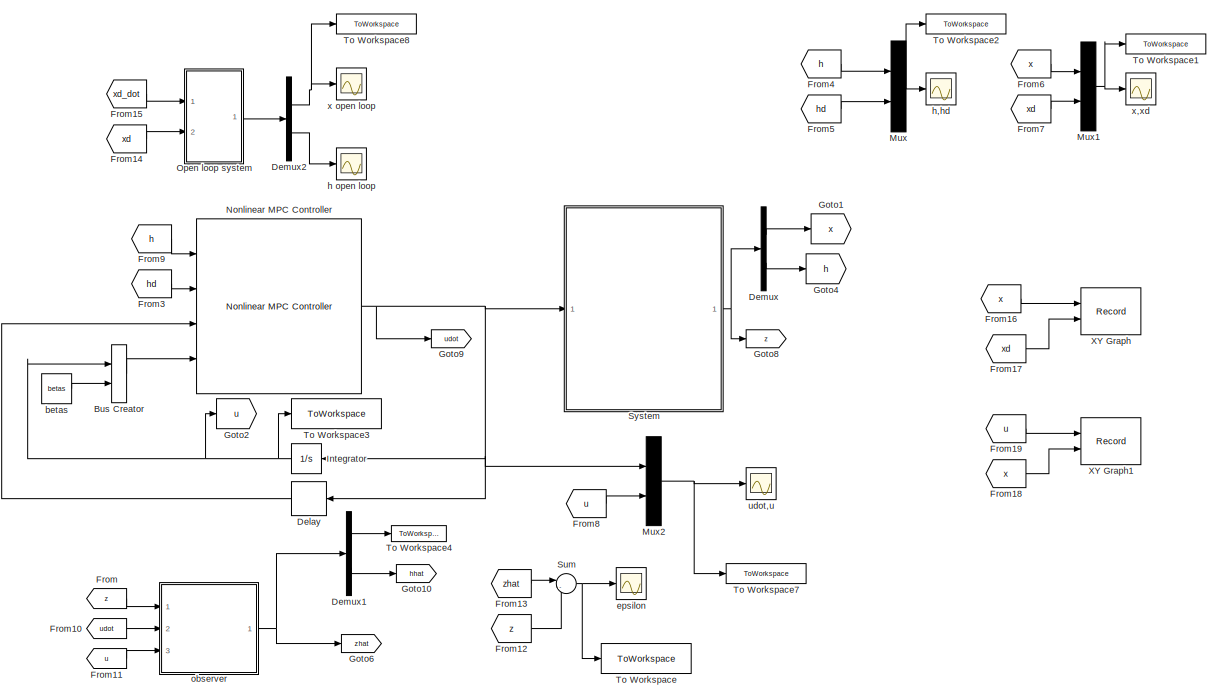
[diagram: root canvas - part 1/2, right side, full height]
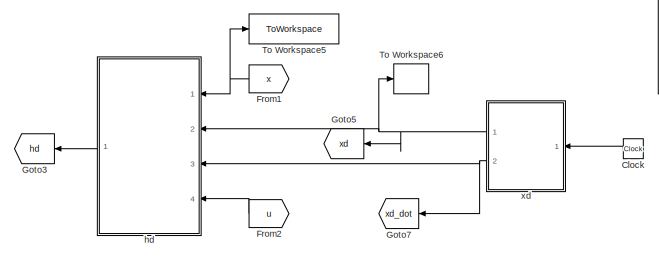
[diagram: root canvas - part 2/2, bottom left region]
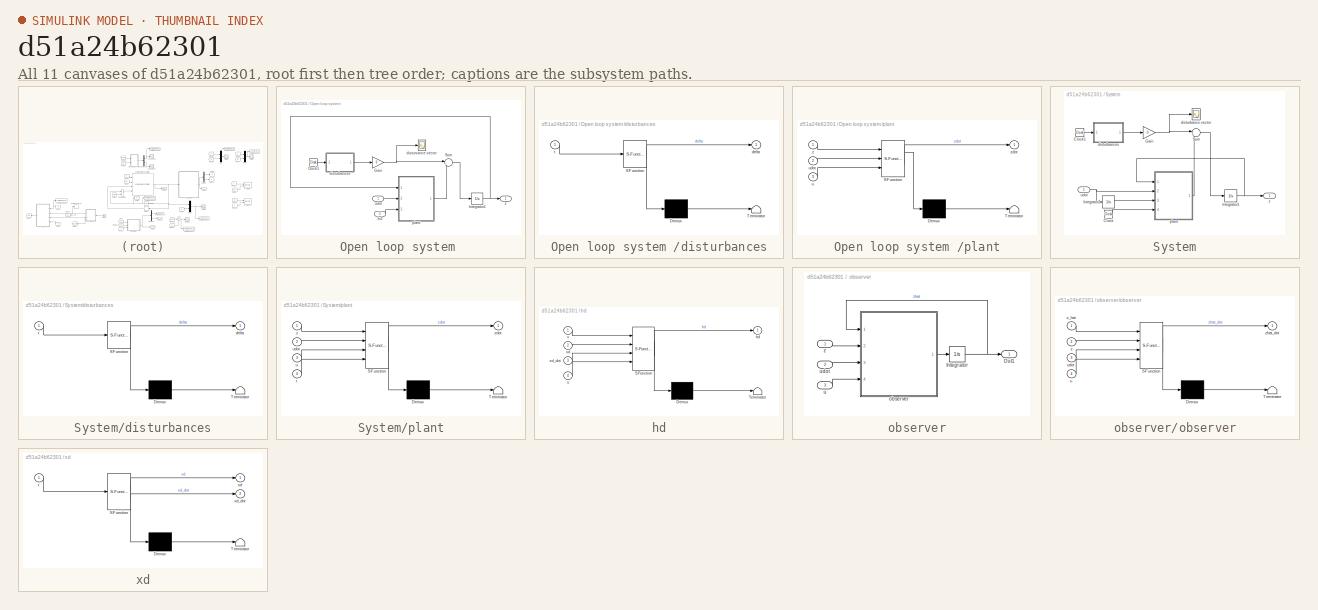
[diagram: thumbnail index - all 11 canvases of the model, root first then tree order]
MODEL slx_d51a24b62301
KIND model
CONFIG AbsTol = auto
CONFIG EnableMultiTasking = off
CONFIG FixedStep = 0.0001
CONFIG MaxStep = auto
CONFIG MinStep = auto
CONFIG RelTol = 1e-3
CONFIG SampleTimeConstraint = Unconstrained
CONFIG SolverName = ode5
CONFIG StartTime = 0.0
CONFIG StopTime = 40
BLOCK [BusCreator] Bus Creator
  DisplayOption = bar
  InheritFromInputs = off
  Inputs = 2
  NonVirtualBus = on
  OutDataTypeStr = Bus: myBusObject
  Ports = [2, 1]
BLOCK [Clock] Clock
BLOCK [Delay] Delay
  DelayLength = 1
  InitialCondition = 0
  InputPortMap = u0
  Ports = [1, 1]
BLOCK [Demux] Demux
  Outputs = 2
  Ports = [1, 2]
BLOCK [Demux] Demux1
  Outputs = 2
  Ports = [1, 2]
BLOCK [Demux] Demux2
  Outputs = 2
  Ports = [1, 2]
BLOCK [From] From
  GotoTag = z
BLOCK [From] From1
  GotoTag = x
BLOCK [From] From10
  GotoTag = udot
BLOCK [From] From11
  GotoTag = u
BLOCK [From] From12
  GotoTag = z
BLOCK [From] From13
  GotoTag = zhat
BLOCK [From] From14
  GotoTag = xd
BLOCK [From] From15
  GotoTag = xd_dot
BLOCK [From] From16
  GotoTag = x
BLOCK [From] From17
  GotoTag = xd
BLOCK [From] From18
  GotoTag = x
BLOCK [From] From19
  GotoTag = u
BLOCK [From] From2
  GotoTag = u
BLOCK [From] From3
  GotoTag = hd
BLOCK [From] From4
  GotoTag = h
BLOCK [From] From5
  GotoTag = hd
BLOCK [From] From6
  GotoTag = x
BLOCK [From] From7
  GotoTag = xd
BLOCK [From] From8
  GotoTag = u
BLOCK [From] From9
  GotoTag = h
BLOCK [Goto] Goto1
  GotoTag = x
BLOCK [Goto] Goto10
  GotoTag = hhat
BLOCK [Goto] Goto2
  GotoTag = u
BLOCK [Goto] Goto3
  GotoTag = hd
BLOCK [Goto] Goto4
  GotoTag = h
BLOCK [Goto] Goto5
  GotoTag = xd
BLOCK [Goto] Goto6
  GotoTag = zhat
BLOCK [Goto] Goto7
  GotoTag = xd_dot
BLOCK [Goto] Goto8
  GotoTag = z
BLOCK [Goto] Goto9
  GotoTag = udot
BLOCK [Integrator] Integrator
  Ports = [1, 1]
BLOCK [Mux] Mux
  DisplayOption = bar
  Inputs = 2
  Ports = [2, 1]
BLOCK [Mux] Mux1
  DisplayOption = bar
  Inputs = 2
  Ports = [2, 1]
BLOCK [Mux] Mux2
  DisplayOption = bar
  Inputs = 2
  Ports = [2, 1]
BLOCK [Reference] Nonlinear MPC Controller  REF=mpclib/Nonlinear MPC Controller  (lib defined in mdl_ae329e0e0455)
  Ports = [4, 1]
  SCDEnableBlockLinearizationSpecification = on
  SourceBlock = mpclib/Nonlinear MPC Controller
  SourceProductBaseCode = MP
  SourceType = NonlinearMPC
BLOCK [SubSystem] Open loop system 
  Ports = [2, 1]
  RequestExecContextInheritance = off
BLOCK [Clock] Open loop system /Clock1
BLOCK [Gain] Open loop system /Gain
  Gain = 0
BLOCK [Inport] Open loop system /In2
  Port = 2
BLOCK [Integrator] Open loop system /Integrator1
  InitialCondition = [3  -2]
  Ports = [1, 1]
BLOCK [Sum] Open loop system /Sum
  Inputs = |++
  Ports = [2, 1]
BLOCK [SubSystem] Open loop system /disturbances
  ErrorFcn = Stateflow.Translate.translate
  PermitHierarchicalResolution = ExplicitOnly
  Ports = [1, 1]
  RequestExecContextInheritance = off
  SFBlockType = MATLAB Function
  TreatAsAtomicUnit = on
BLOCK [Demux] Open loop system /disturbances/ Demux 
  Outputs = 1
  Ports = [1, 1]
BLOCK [S-Function] Open loop system /disturbances/ SFunction 
  EnableBusSupport = on
  FunctionName = sf_sfun
  PortCounts = [1 2]
  Ports = [1, 2]
  SFcnIsStateOwnerBlock = off
  SFunctionDeploymentMode = off
  Tag = Stateflow S-Function 6
BLOCK [Terminator] Open loop system /disturbances/ Terminator 
BLOCK [Outport] Open loop system /disturbances/delta
  VectorParamsAs1DForOutWhenUnconnected = off
BLOCK [Inport] Open loop system /disturbances/t
BLOCK [Scope] Open loop system /disturvance vector
  Floating = off
  NumInputPorts = 1
  Ports = [1]
  ScopeSpecificationString = Simulink.scopes.TimeScopeBlockCfg('CurrentConfiguration', extmgr.ConfigurationSet(extmgr.Configuration('Core','General UI',true),extmgr.Configuration('Core','Source UI',true),extmgr.Configuration('Sources','WiredSimulink',true,'DataLoggingVariableName','ScopeData2'),extmgr.Configuration('Visuals','Time Domain',true,'SerializedDisplays',{struct('MinYLimReal','-1.00000','MaxYLimReal','1.00000','YLab...<+1486ch>
BLOCK [SubSystem] Open loop system /plant
  ErrorFcn = Stateflow.Translate.translate
  PermitHierarchicalResolution = ExplicitOnly
  Ports = [3, 1]
  RequestExecContextInheritance = off
  SFBlockType = MATLAB Function
  TreatAsAtomicUnit = on
BLOCK [Demux] Open loop system /plant/ Demux 
  Outputs = 1
  Ports = [1, 1]
BLOCK [S-Function] Open loop system /plant/ SFunction 
  EnableBusSupport = on
  FunctionName = sf_sfun
  Parameters = A,Abw,B,beta1,beta2,beta3,beta4,beta5,beta6,dp
  PortCounts = [3 2]
  Ports = [3, 2]
  SFcnIsStateOwnerBlock = off
  SFunctionDeploymentMode = off
  Tag = Stateflow S-Function 5
BLOCK [Terminator] Open loop system /plant/ Terminator 
BLOCK [Inport] Open loop system /plant/u
  Port = 3
BLOCK [Inport] Open loop system /plant/udot
  Port = 2
BLOCK [Inport] Open loop system /plant/z
BLOCK [Outport] Open loop system /plant/zdot
BLOCK [Inport] Open loop system /udot
BLOCK [Outport] Open loop system /z
BLOCK [Sum] Sum
  Inputs = |-+
  Ports = [2, 1]
BLOCK [SubSystem] System
  Ports = [1, 1]
  RequestExecContextInheritance = off
BLOCK [Clock] System/Clock
BLOCK [Clock] System/Clock1
BLOCK [Gain] System/Gain
  Gain = 0
BLOCK [Integrator] System/Integrator1
  InitialCondition = [3  -2]
  Ports = [1, 1]
BLOCK [Integrator] System/Integrator2
  Ports = [1, 1]
BLOCK [Sum] System/Sum
  Inputs = |++
  Ports = [2, 1]
BLOCK [Scope] System/disturbance vector
  Floating = off
  NumInputPorts = 1
  Ports = [1]
  ScopeSpecificationString = Simulink.scopes.TimeScopeBlockCfg('CurrentConfiguration', extmgr.ConfigurationSet(extmgr.Configuration('Core','General UI',true),extmgr.Configuration('Core','Source UI',true),extmgr.Configuration('Sources','WiredSimulink',true,'DataLoggingVariableName','ScopeData1'),extmgr.Configuration('Visuals','Time Domain',true,'SerializedDisplays',{struct('MinYLimReal','-1.00000','MaxYLimReal','1.00000','YLab...<+1470ch>
BLOCK [SubSystem] System/disturbances
  ErrorFcn = Stateflow.Translate.translate
  PermitHierarchicalResolution = ExplicitOnly
  Ports = [1, 1]
  RequestExecContextInheritance = off
  SFBlockType = MATLAB Function
  TreatAsAtomicUnit = on
BLOCK [Demux] System/disturbances/ Demux 
  Outputs = 1
  Ports = [1, 1]
BLOCK [S-Function] System/disturbances/ SFunction 
  EnableBusSupport = on
  FunctionName = sf_sfun
  PortCounts = [1 2]
  Ports = [1, 2]
  SFcnIsStateOwnerBlock = off
  SFunctionDeploymentMode = off
  Tag = Stateflow S-Function 7
BLOCK [Terminator] System/disturbances/ Terminator 
BLOCK [Outport] System/disturbances/delta
  VectorParamsAs1DForOutWhenUnconnected = off
BLOCK [Inport] System/disturbances/t
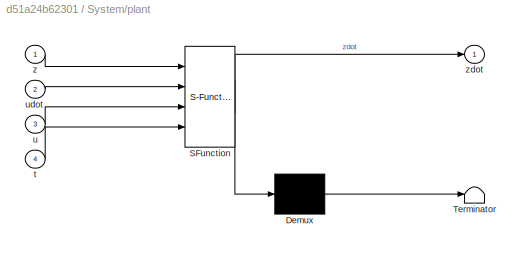
BLOCK [SubSystem] System/plant
  ErrorFcn = Stateflow.Translate.translate
  PermitHierarchicalResolution = ExplicitOnly
  Ports = [4, 1]
  RequestExecContextInheritance = off
  SFBlockType = MATLAB Function
  TreatAsAtomicUnit = on
BLOCK [Demux] System/plant/ Demux 
  Outputs = 1
  Ports = [1, 1]
BLOCK [S-Function] System/plant/ SFunction 
  EnableBusSupport = on
  FunctionName = sf_sfun
  Parameters = A,Abw,B,beta1,beta2,beta3,beta4,beta5,beta6,dp
  PortCounts = [4 2]
  Ports = [4, 2]
  SFcnIsStateOwnerBlock = off
  SFunctionDeploymentMode = off
  Tag = Stateflow S-Function 2
BLOCK [Terminator] System/plant/ Terminator 
BLOCK [Inport] System/plant/t
  Port = 4
BLOCK [Inport] System/plant/u
  Port = 3
BLOCK [Inport] System/plant/udot
  Port = 2
BLOCK [Inport] System/plant/z
BLOCK [Outport] System/plant/zdot
BLOCK [Inport] System/udot
BLOCK [Outport] System/z
BLOCK [ToWorkspace] To Workspace
  FixptAsFi = on
  MaxDataPoints = inf
  Ports = [1]
  SampleTime = -1
  VariableName = epsilon
BLOCK [ToWorkspace] To Workspace1
  FixptAsFi = on
  MaxDataPoints = inf
  Ports = [1]
  SampleTime = -1
  VariableName = x_xd
BLOCK [ToWorkspace] To Workspace2
  FixptAsFi = on
  MaxDataPoints = inf
  Ports = [1]
  SampleTime = -1
  VariableName = h_hd
BLOCK [ToWorkspace] To Workspace3
  FixptAsFi = on
  MaxDataPoints = inf
  Ports = [1]
  SampleTime = -1
  VariableName = u
BLOCK [ToWorkspace] To Workspace4
  FixptAsFi = on
  MaxDataPoints = inf
  Ports = [1]
  SampleTime = -1
  VariableName = xhat
BLOCK [ToWorkspace] To Workspace5
  FixptAsFi = on
  MaxDataPoints = inf
  Ports = [1]
  SampleTime = -1
  VariableName = y
BLOCK [ToWorkspace] To Workspace6
  FixptAsFi = on
  MaxDataPoints = inf
  Ports = [1]
  SampleTime = -1
  VariableName = yd
BLOCK [ToWorkspace] To Workspace7
  FixptAsFi = on
  MaxDataPoints = inf
  Ports = [1]
  SampleTime = -1
  VariableName = u_udot
BLOCK [ToWorkspace] To Workspace8
  FixptAsFi = on
  MaxDataPoints = inf
  Ports = [1]
  SampleTime = -1
  VariableName = x_open_loop
BLOCK [Record] XY Graph
  CompatibilityTag = XY
  FileSettingsInternal = {"entries":[{"content":{"excelSettings":{"content":{},"type":"Streamout.ExcelSettings"}},"type":"Streamout.FileSettingStorage","uuid":"43ed1803-2e51-4bcb-b320-9c9d12944944"}],"packageUris":["http://schema.mathworks.com/mf0/streamout_blocks/R2020a"],"version":"1.0"}
  Layout = [1 1]
  Ports = [2]
  SignalsInternal = {"entries":[{"content":{"signals":[{"content":{"blockPath":["PiezoMPC2_17/XY Graph"],"channel":[],"dimensions":[1],"domain":"PiezoMPC2_17/XY Graph","lineColor":"#a2142f","plots":[1],"port":1,"sid":[""],"signalID":7776,"signalName":"From16"},"type":"RecordBlkView.Signal","uuid":"85c6ca8d-4860-42c1-af1f-82db8d25a64f"},{"content":{"blockPath":["PiezoMPC2_17/XY Graph"],"channel":[],"dimensions":[1],"d...<+377ch>
  VisualizationBindings = {"xyplotplugin":{"info":[{"series":[{"bindingParametersList":[{"parameter":"X-Axis","signalID":7776,"signalName":"From16"},{"parameter":"Y-Axis","signalID":7780,"signalName":"From17"}],"seriesID":32554}],"subplotID":1}]}}
BLOCK [Record] XY Graph1
  CompatibilityTag = XY
  FileSettingsInternal = {"entries":[{"content":{"excelSettings":{"content":{},"type":"Streamout.ExcelSettings"}},"type":"Streamout.FileSettingStorage","uuid":"9b7f80d8-412e-4e2a-8833-cd9c8851424c"}],"packageUris":["http://schema.mathworks.com/mf0/streamout_blocks/R2020a"],"version":"1.0"}
  Layout = [1 1]
  Ports = [2]
  SignalsInternal = {"entries":[{"content":{"signals":[{"content":{"blockPath":["PiezoMPC2_17/XY Graph1"],"channel":[],"dimensions":[1,1],"domain":"PiezoMPC2_17/XY Graph1","lineColor":"#a2142f","plots":[1],"port":1,"sid":[""],"signalID":7784,"signalName":"From19"},"type":"RecordBlkView.Signal","uuid":"d37f6522-71ed-4229-9050-82b4d9bbd21d"},{"content":{"blockPath":["PiezoMPC2_17/XY Graph1"],"channel":[],"dimensions":[...<+383ch>
  VisualizationBindings = {"xyplotplugin":{"info":[{"series":[{"bindingParametersList":[{"parameter":"X-Axis","signalID":7784,"signalName":"From19"},{"parameter":"Y-Axis","signalID":7788,"signalName":"From18"}],"seriesID":21478}],"subplotID":1}]}}
BLOCK [Constant] betas
  Value = betas
  VectorParams1D = off
BLOCK [Scope] epsilon
  Floating = off
  NumInputPorts = 1
  Ports = [1]
  ScopeSpecificationString = Simulink.scopes.TimeScopeBlockCfg('CurrentConfiguration', extmgr.ConfigurationSet(extmgr.Configuration('Core','General UI',true),extmgr.Configuration('Core','Source UI',true),extmgr.Configuration('Sources','WiredSimulink',true,'DataLoggingVariableName','ScopeData1'),extmgr.Configuration('Visuals','Time Domain',true,'SerializedDisplays',{struct('MinYLimReal','-2.625','MaxYLimReal','3.625','YLabelRe...<+1489ch>
BLOCK [Scope] h open loop
  Floating = off
  NumInputPorts = 1
  Ports = [1]
  ScopeSpecificationString = Simulink.scopes.TimeScopeBlockCfg('CurrentConfiguration', extmgr.ConfigurationSet(extmgr.Configuration('Core','General UI',true),extmgr.Configuration('Core','Source UI',true),extmgr.Configuration('Sources','WiredSimulink',true,'DataLoggingVariableName','ScopeData1'),extmgr.Configuration('Visuals','Time Domain',true,'SerializedDisplays',{struct('MinYLimReal','-130.88964','MaxYLimReal','129.65019','...<+1510ch>
BLOCK [Scope] h,hd
  Floating = off
  NumInputPorts = 1
  Ports = [1]
  ScopeSpecificationString = Simulink.scopes.TimeScopeBlockCfg('CurrentConfiguration', extmgr.ConfigurationSet(extmgr.Configuration('Core','General UI',true),extmgr.Configuration('Core','Source UI',true),extmgr.Configuration('Sources','WiredSimulink',true,'DataLoggingVariableName','ScopeData1'),extmgr.Configuration('Visuals','Time Domain',true,'SerializedDisplays',{struct('MinYLimReal','-157.16038','MaxYLimReal','161.34844','...<+1518ch>
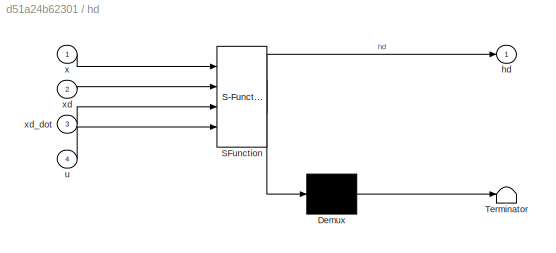
BLOCK [SubSystem] hd
  ErrorFcn = Stateflow.Translate.translate
  PermitHierarchicalResolution = ExplicitOnly
  Ports = [4, 1]
  RequestExecContextInheritance = off
  SFBlockType = MATLAB Function
  TreatAsAtomicUnit = on
BLOCK [Demux] hd/ Demux 
  Outputs = 1
  Ports = [1, 1]
BLOCK [S-Function] hd/ SFunction 
  EnableBusSupport = on
  FunctionName = sf_sfun
  Parameters = A,B,dp,kappa
  PortCounts = [4 2]
  Ports = [4, 2]
  SFcnIsStateOwnerBlock = off
  SFunctionDeploymentMode = off
  Tag = Stateflow S-Function 3
BLOCK [Terminator] hd/ Terminator 
BLOCK [Outport] hd/hd
BLOCK [Inport] hd/u
  Port = 4
BLOCK [Inport] hd/x
BLOCK [Inport] hd/xd
  Port = 2
BLOCK [Inport] hd/xd_dot
  Port = 3
BLOCK [SubSystem] observer
  Ports = [3, 1]
  RequestExecContextInheritance = off
BLOCK [Integrator] observer/Integrator
  InitialCondition = [0;0]
  Ports = [1, 1]
BLOCK [Outport] observer/Out1
  VectorParamsAs1DForOutWhenUnconnected = off
BLOCK [SubSystem] observer/observer
  ErrorFcn = Stateflow.Translate.translate
  PermitHierarchicalResolution = ExplicitOnly
  Ports = [4, 1]
  RequestExecContextInheritance = off
  SFBlockType = MATLAB Function
  TreatAsAtomicUnit = on
BLOCK [Demux] observer/observer/ Demux 
  Outputs = 1
  Ports = [1, 1]
BLOCK [S-Function] observer/observer/ SFunction 
  EnableBusSupport = on
  FunctionName = sf_sfun
  Parameters = A,Abw,Aobs,B,C,K,S_inv,beta1,beta2,beta3,beta4,beta5,beta6,dp
  PortCounts = [4 2]
  Ports = [4, 2]
  SFcnIsStateOwnerBlock = off
  SFunctionDeploymentMode = off
  Tag = Stateflow S-Function 1
BLOCK [Terminator] observer/observer/ Terminator 
BLOCK [Inport] observer/observer/u
  Port = 4
BLOCK [Inport] observer/observer/udot
  Port = 3
BLOCK [Inport] observer/observer/z
  Port = 2
BLOCK [Inport] observer/observer/z_hat
BLOCK [Outport] observer/observer/zhat_dot
  VectorParamsAs1DForOutWhenUnconnected = off
BLOCK [Inport] observer/u
  Port = 3
BLOCK [Inport] observer/udot
  Port = 2
BLOCK [Inport] observer/z
BLOCK [Scope] udot,u
  Floating = off
  NumInputPorts = 1
  Ports = [1]
  ScopeSpecificationString = Simulink.scopes.TimeScopeBlockCfg('CurrentConfiguration', extmgr.ConfigurationSet(extmgr.Configuration('Core','General UI',true),extmgr.Configuration('Core','Source UI',true),extmgr.Configuration('Sources','WiredSimulink',true),extmgr.Configuration('Visuals','Time Domain',true,'SerializedDisplays',{struct('MinYLimReal','-507.23865','MaxYLimReal','422.96751','YLabelReal','','MinYLimMag',' 0.00000',...<+1503ch>
BLOCK [Scope] x open loop
  Floating = off
  NumInputPorts = 1
  Ports = [1]
  ScopeSpecificationString = Simulink.scopes.TimeScopeBlockCfg('CurrentConfiguration', extmgr.ConfigurationSet(extmgr.Configuration('Core','General UI',true),extmgr.Configuration('Core','Source UI',true),extmgr.Configuration('Sources','WiredSimulink',true,'DataLoggingVariableName','ScopeData2'),extmgr.Configuration('Visuals','Time Domain',true,'SerializedDisplays',{struct('MinYLimReal','-63.47107','MaxYLimReal','72.72593','YL...<+1500ch>
BLOCK [Scope] x,xd
  Floating = off
  NumInputPorts = 1
  Ports = [1]
  ScopeSpecificationString = Simulink.scopes.TimeScopeBlockCfg('CurrentConfiguration', extmgr.ConfigurationSet(extmgr.Configuration('Core','General UI',true),extmgr.Configuration('Core','Source UI',true),extmgr.Configuration('Sources','WiredSimulink',true,'DataLoggingVariableName','ScopeData2'),extmgr.Configuration('Visuals','Time Domain',true,'SerializedDisplays',{struct('MinYLimReal','-162.7407','MaxYLimReal','343.46833','Y...<+1507ch>
BLOCK [SubSystem] xd
  ErrorFcn = Stateflow.Translate.translate
  PermitHierarchicalResolution = ExplicitOnly
  Ports = [1, 2]
  RequestExecContextInheritance = off
  SFBlockType = MATLAB Function
  TreatAsAtomicUnit = on
BLOCK [Demux] xd/ Demux 
  Outputs = 1
  Ports = [1, 1]
BLOCK [S-Function] xd/ SFunction 
  EnableBusSupport = on
  FunctionName = sf_sfun
  Parameters = alpha,freq
  PortCounts = [1 3]
  Ports = [1, 3]
  SFcnIsStateOwnerBlock = off
  SFunctionDeploymentMode = off
  Tag = Stateflow S-Function 4
BLOCK [Terminator] xd/ Terminator 
BLOCK [Inport] xd/t
BLOCK [Outport] xd/xd
BLOCK [Outport] xd/xd_dot
  Port = 2
LINE Bus Creator:1 -> Nonlinear MPC Controller:4
LINE Clock:1 -> xd:1
LINE Delay:1 -> Nonlinear MPC Controller:3
LINE Demux1:1 -> To Workspace4:1
LINE Demux1:2 -> Goto10:1
NET Demux2:1 -> To Workspace8:1, x open loop:1
LINE Demux2:2 -> h open loop:1
LINE Demux:1 -> Goto1:1
LINE Demux:2 -> Goto4:1
LINE From10:1 -> observer:2
LINE From11:1 -> observer:3
LINE From12:1 -> Sum:2
LINE From13:1 -> Sum:1
LINE From14:1 -> Open loop system :2
LINE From15:1 -> Open loop system :1
LINE From16:1 -> XY Graph:1
LINE From17:1 -> XY Graph:2
LINE From18:1 -> XY Graph1:2
LINE From19:1 -> XY Graph1:1
NET From1:1 -> To Workspace5:1, hd:1
LINE From2:1 -> hd:4
LINE From3:1 -> Nonlinear MPC Controller:2
LINE From4:1 -> Mux:1
LINE From5:1 -> Mux:2
LINE From6:1 -> Mux1:1
LINE From7:1 -> Mux1:2
LINE From8:1 -> Mux2:2
LINE From9:1 -> Nonlinear MPC Controller:1
LINE From:1 -> observer:1
NET Integrator:1 -> Bus Creator:1, Goto2:1, To Workspace3:1
NET Mux1:1 -> To Workspace1:1, x,xd:1
NET Mux2:1 -> To Workspace7:1, udot,u:1
NET Mux:1 -> To Workspace2:1, h,hd:1
NET Nonlinear MPC Controller:1 -> Delay:1, Goto9:1, Integrator:1, Mux2:1, System:1
LINE Open loop system /Clock1:1 -> Open loop system /disturbances:1
NET Open loop system /Gain:1 -> Open loop system /Sum:1, Open loop system /disturvance vector:1
LINE Open loop system /In2:1 -> Open loop system /plant:3
NET Open loop system /Integrator1:1 -> Open loop system /plant:1, Open loop system /z:1
LINE Open loop system /Sum:1 -> Open loop system /Integrator1:1
LINE Open loop system /disturbances:1 -> Open loop system /Gain:1
LINE Open loop system /plant:1 -> Open loop system /Sum:2
LINE Open loop system /udot:1 -> Open loop system /plant:2
LINE Open loop system :1 -> Demux2:1
NET Sum:1 -> To Workspace:1, epsilon:1
LINE System/Clock1:1 -> System/disturbances:1
LINE System/Clock:1 -> System/plant:4
NET System/Gain:1 -> System/Sum:1, System/disturbance vector:1
NET System/Integrator1:1 -> System/plant:1, System/z:1
LINE System/Integrator2:1 -> System/plant:3
LINE System/Sum:1 -> System/Integrator1:1
LINE System/disturbances:1 -> System/Gain:1
LINE System/plant:1 -> System/Sum:2
NET System/udot:1 -> System/Integrator2:1, System/plant:2
NET System:1 -> Demux:1, Goto8:1
LINE betas:1 -> Bus Creator:2
LINE hd:1 -> Goto3:1
NET observer/Integrator:1 -> observer/Out1:1, observer/observer:1
LINE observer/observer:1 -> observer/Integrator:1
LINE observer/u:1 -> observer/observer:4
LINE observer/udot:1 -> observer/observer:3
LINE observer/z:1 -> observer/observer:2
NET observer:1 -> Demux1:1, Goto6:1
NET xd:1 -> Goto5:1, To Workspace6:1, hd:2
NET xd:2 -> Goto7:1, hd:3
note: NET lines group one-source signal fan-out (src -> all destinations, sorted); 1:1 wires keep LINE
CHART Open loop system
/disturbances states=1 transitions=1
  STATE_LABEL 'eML_blk_kernel()'
  STATE_LABEL 'SCRIPT:\nfunction delta = dist(t)\n\ndelta_x = 30;\ndelta_h = 25*sin(t); %2*sin(t); -- causa error en el observer\n\ndelta = [delta_x ; delta_h];\n'
CHART System/disturbances states=1 transitions=1
  STATE_LABEL 'eML_blk_kernel()'
  STATE_LABEL 'SCRIPT:\nfunction delta = dist(t)\n\ndelta_x = 30;\ndelta_h = 25*sin(t); \n\ndelta = [delta_x ; delta_h];\n'
CHART observer/observer states=1 transitions=1
  STATE_LABEL 'eML_blk_kernel()'
  STATE_LABEL 'SCRIPT:\nfunction zhat_dot = obs(z_hat, z, udot, u, Aobs, Abw, A, B, dp,S_inv, C, ...\n                        beta1, beta2, beta3, beta4, beta5, beta6,K)\n    \n\n    h_hat     = z_hat(2);\n    x_hat     = z_hat(1);           \n    \n    Phi = beta1*sign( udot*h_hat ) + beta2*sign( udot*u ) + ...\n          beta3*sign( u*h_hat )    + beta4*sign( udot )   + ...\n          beta5*sign( h_hat )      + beta6*si...<+209ch>'
CHART System/plant states=1 transitions=1
  STATE_LABEL 'eML_blk_kernel()'
  STATE_LABEL 'SCRIPT:\nfunction zdot = fcn(z,udot,u,beta1, beta2, beta3, beta4, beta5, beta6, Abw, A, B, dp,t)\n\n    %States\n    h     = z(2);\n    x     = z(1);           \n    \n    Phi = beta1*sign( udot*h ) + beta2*sign( udot*u ) + ...\n          beta3*sign( u*h )    + beta4*sign( udot )   + ...\n          beta5*sign( h )      + beta6*sign( u );\n      \n    zdot = zeros(2,1);\n    %============================ Syste...<+146ch>'
CHART hd states=1 transitions=1
  STATE_LABEL 'eML_blk_kernel()'
  STATE_LABEL 'SCRIPT:\nfunction hd = fcn(x,xd,xd_dot,u, A, B, kappa, dp)\n\n    xtes = x - xd;\n    hd   = (1/B)*( (A - kappa)*xtes + A*xd - xd_dot + B*dp*u );\n\nend\n'
CHART xd states=1 transitions=1
  STATE_LABEL 'eML_blk_kernel()'
  STATE_LABEL 'SCRIPT:\nfunction [xd, xd_dot] = fcn(t,alpha, freq)\n\n\txd     = alpha*sin(freq*t);\n    xd_dot = alpha*cos(freq*t);\nend\n'
CHART Open loop system
/plant states=1 transitions=1
  STATE_LABEL 'eML_blk_kernel()'
  STATE_LABEL 'SCRIPT:\nfunction zdot = fcn(z,udot,u,beta1, beta2, beta3, beta4, beta5, beta6, Abw, A, B, dp)\n\n    %States\n    h     = z(2);\n    x     = z(1);           \n    \n    Phi = beta1*sign( udot*h ) + beta2*sign( udot*u ) + ...\n          beta3*sign( u*h )    + beta4*sign( udot )   + ...\n          beta5*sign( h )      + beta6*sign( u );\n      \n    zdot = zeros(2,1);\n    %============================ System ...<+144ch>'
CHART  states=0 transitions=0
CHART  states=0 transitions=0
CHART  states=0 transitions=0
CHART  states=0 transitions=0
CHART  states=0 transitions=0
CHART  states=0 transitions=0
CHART  states=0 transitions=0
